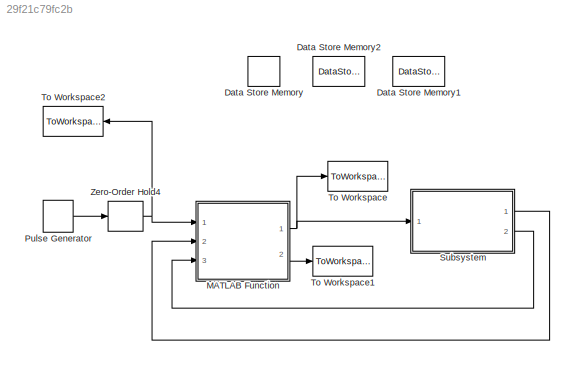
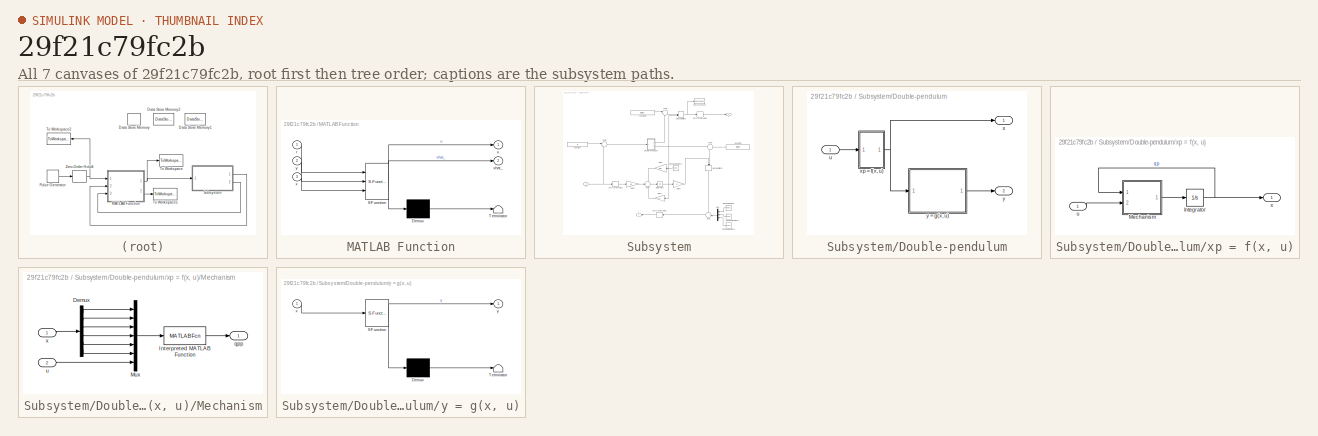
[diagram: thumbnail index - all 7 canvases of the model, root first then tree order]
MODEL slx_29f21c79fc2b
KIND model
CONFIG AbsTol = auto
CONFIG FixedStep = auto
CONFIG MaxStep = auto
CONFIG MinStep = auto
CONFIG RelTol = 1e-3
CONFIG SampleTimeConstraint = Unconstrained
CONFIG Solver = ode45
CONFIG SolverMode = Auto
CONFIG SolverName = ode45
CONFIG StartTime = 0.0
CONFIG StopTime = params.tf
BLOCK [DataStoreMemory] Data Store Memory
  DataStoreName = v
  OutDataTypeStr = double
  SignalType = real
BLOCK [DataStoreMemory] Data Store Memory1
  DataStoreName = u_1
  OutDataTypeStr = double
  ReadBeforeWriteMsg = warning
  SignalType = real
  WriteAfterReadMsg = warning
  WriteAfterWriteMsg = warning
BLOCK [DataStoreMemory] Data Store Memory2
  DataStoreName = xhat
  InitialValue = params.xhat0
  OutDataTypeStr = double
  ReadBeforeWriteMsg = warning
  SignalType = real
  WriteAfterReadMsg = warning
  WriteAfterWriteMsg = warning
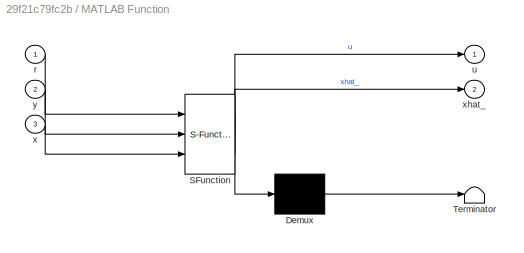
BLOCK [SubSystem] MATLAB Function
  ErrorFcn = Stateflow.Translate.translate
  PermitHierarchicalResolution = ExplicitOnly
  Ports = [3, 2]
  RequestExecContextInheritance = off
  SFBlockType = MATLAB Function
  TreatAsAtomicUnit = on
BLOCK [Demux] MATLAB Function/ Demux 
  Outputs = 1
  Ports = [1, 1]
BLOCK [S-Function] MATLAB Function/ SFunction 
  EnableBusSupport = on
  FunctionName = sf_sfun
  Parameters = C,Gamma,Ki,Kp,L,Phi
  PortCounts = [3 3]
  Ports = [3, 3]
  Tag = Stateflow S-Function sim_double2015 2
BLOCK [Terminator] MATLAB Function/ Terminator 
BLOCK [Inport] MATLAB Function/r
  IconDisplay = Port number
BLOCK [Outport] MATLAB Function/u
  IconDisplay = Port number
BLOCK [Inport] MATLAB Function/x
  IconDisplay = Port number
  Port = 3
BLOCK [Outport] MATLAB Function/xhat_
  IconDisplay = Port number
  Port = 2
BLOCK [Inport] MATLAB Function/y
  IconDisplay = Port number
  Port = 2
BLOCK [DiscretePulseGenerator] Pulse Generator
  Amplitude = params.step_amplitude
  Period = 10
  Ports = [0, 1]
  PulseType = Time based
  PulseWidth = 50
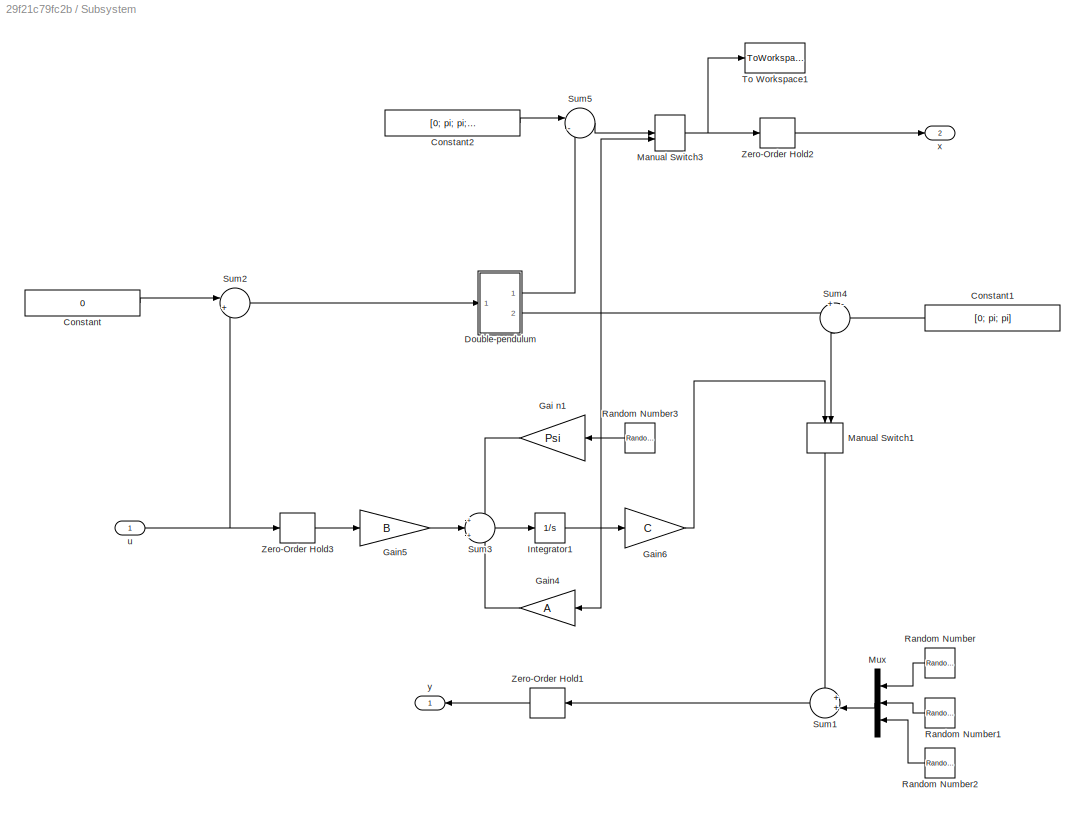
BLOCK [SubSystem] Subsystem
  Ports = [1, 2]
  RequestExecContextInheritance = off
BLOCK [Constant] Subsystem/Constant
  Value = 0
BLOCK [Constant] Subsystem/Constant1
  Value = [0; pi; pi]
BLOCK [Constant] Subsystem/Constant2
  Value = [0; pi; pi; 0; 0; 0]
BLOCK [SubSystem] Subsystem/Double-pendulum
  Ports = [1, 2]
  RequestExecContextInheritance = off
BLOCK [Inport] Subsystem/Double-pendulum/u
  IconDisplay = Port number
BLOCK [Outport] Subsystem/Double-pendulum/x
  IconDisplay = Port number
BLOCK [SubSystem] Subsystem/Double-pendulum/xp = f(x, u)
  Ports = [1, 1]
  RequestExecContextInheritance = off
BLOCK [Integrator] Subsystem/Double-pendulum/xp = f(x, u)/Integrator
  InitialCondition = params.x0
  Ports = [1, 1]
BLOCK [SubSystem] Subsystem/Double-pendulum/xp = f(x, u)/Mechanism
  Ports = [2, 1]
  RequestExecContextInheritance = off
BLOCK [Demux] Subsystem/Double-pendulum/xp = f(x, u)/Mechanism/Demux
  DisplayOption = bar
  Outputs = 6
  Ports = [1, 6]
BLOCK [MATLABFcn] Subsystem/Double-pendulum/xp = f(x, u)/Mechanism/Interpreted MATLAB Function
  MATLABFcn = pendulumfun(u(1), u(2), u(3), u(4), u(5), u(6), u(7))
  OutputDimensions = 6
  Ports = [1, 1]
BLOCK [Mux] Subsystem/Double-pendulum/xp = f(x, u)/Mechanism/Mux
  DisplayOption = bar
  Inputs = 7
  Ports = [7, 1]
BLOCK [Outport] Subsystem/Double-pendulum/xp = f(x, u)/Mechanism/qpp
  IconDisplay = Port number
BLOCK [Inport] Subsystem/Double-pendulum/xp = f(x, u)/Mechanism/u
  IconDisplay = Port number
  Port = 2
BLOCK [Inport] Subsystem/Double-pendulum/xp = f(x, u)/Mechanism/x
  IconDisplay = Port number
BLOCK [Inport] Subsystem/Double-pendulum/xp = f(x, u)/u
  IconDisplay = Port number
BLOCK [Outport] Subsystem/Double-pendulum/xp = f(x, u)/x
  IconDisplay = Port number
BLOCK [Outport] Subsystem/Double-pendulum/y
  IconDisplay = Port number
  Port = 2
BLOCK [SubSystem] Subsystem/Double-pendulum/y = g(x, u)
  ErrorFcn = Stateflow.Translate.translate
  PermitHierarchicalResolution = ExplicitOnly
  Ports = [1, 1]
  RequestExecContextInheritance = off
  SFBlockType = MATLAB Function
  TreatAsAtomicUnit = on
BLOCK [Demux] Subsystem/Double-pendulum/y = g(x, u)/ Demux 
  Outputs = 1
  Ports = [1, 1]
BLOCK [S-Function] Subsystem/Double-pendulum/y = g(x, u)/ SFunction 
  EnableBusSupport = on
  FunctionName = sf_sfun
  PortCounts = [1 2]
  Ports = [1, 2]
  Tag = Stateflow S-Function sim_double2015 13
BLOCK [Terminator] Subsystem/Double-pendulum/y = g(x, u)/ Terminator 
BLOCK [Inport] Subsystem/Double-pendulum/y = g(x, u)/x
  IconDisplay = Port number
BLOCK [Outport] Subsystem/Double-pendulum/y = g(x, u)/y
  IconDisplay = Port number
BLOCK [Gain] Subsystem/Gai n1
  Gain = Psi
  Multiplication = Matrix(K*u) (u vector)
  OutDataTypeStr = Inherit: Inherit via internal rule
  ParamDataTypeStr = Inherit: Inherit via internal rule
  SaturateOnIntegerOverflow = off
BLOCK [Gain] Subsystem/Gain4
  Gain = A
  Multiplication = Matrix(K*u) (u vector)
  OutDataTypeStr = Inherit: Inherit via internal rule
  ParamDataTypeStr = Inherit: Inherit via internal rule
  SaturateOnIntegerOverflow = off
BLOCK [Gain] Subsystem/Gain5
  Gain = B
  Multiplication = Matrix(K*u) (u vector)
  OutDataTypeStr = Inherit: Inherit via internal rule
  ParamDataTypeStr = Inherit: Inherit via internal rule
  SaturateOnIntegerOverflow = off
BLOCK [Gain] Subsystem/Gain6
  Gain = C
  Multiplication = Matrix(K*u) (u vector)
  OutDataTypeStr = Inherit: Inherit via internal rule
  ParamDataTypeStr = Inherit: Inherit via internal rule
  SaturateOnIntegerOverflow = off
BLOCK [Integrator] Subsystem/Integrator1
  InitialCondition = params.x0 - [params.q0,params.qp0 ]
  Ports = [1, 1]
BLOCK [ManualSwitch] Subsystem/Manual Switch1
  CurrentSetting = 0
BLOCK [ManualSwitch] Subsystem/Manual Switch3
BLOCK [Mux] Subsystem/Mux
  DisplayOption = bar
  Inputs = 3
  Ports = [3, 1]
BLOCK [RandomNumber] Subsystem/Random Number
  SampleTime = Ts
  Variance = params.Rv
BLOCK [RandomNumber] Subsystem/Random Number1
  SampleTime = Ts
  Variance = params.Rv
BLOCK [RandomNumber] Subsystem/Random Number2
  SampleTime = Ts
  Variance = params.Rv
BLOCK [RandomNumber] Subsystem/Random Number3
  SampleTime = Ts
  Variance = params.Rw
BLOCK [Sum] Subsystem/Sum1
  IconShape = round
  InputSameDT = off
  Inputs = ++|
  OutDataTypeStr = Inherit: Inherit via internal rule
  Ports = [2, 1]
  SaturateOnIntegerOverflow = off
BLOCK [Sum] Subsystem/Sum2
  IconShape = round
  InputSameDT = off
  Inputs = |++
  OutDataTypeStr = Inherit: Inherit via internal rule
  Ports = [2, 1]
  SaturateOnIntegerOverflow = off
BLOCK [Sum] Subsystem/Sum3
  IconShape = round
  InputSameDT = off
  Inputs = +|+|+
  OutDataTypeStr = Inherit: Inherit via internal rule
  Ports = [3, 1]
  SaturateOnIntegerOverflow = off
BLOCK [Sum] Subsystem/Sum4
  IconShape = round
  InputSameDT = off
  Inputs = +|-
  OutDataTypeStr = Inherit: Inherit via internal rule
  Ports = [2, 1]
  SaturateOnIntegerOverflow = off
BLOCK [Sum] Subsystem/Sum5
  IconShape = round
  InputSameDT = off
  Inputs = |-+
  OutDataTypeStr = Inherit: Inherit via internal rule
  Ports = [2, 1]
  SaturateOnIntegerOverflow = off
BLOCK [ToWorkspace] Subsystem/To Workspace1
  FixptAsFi = on
  MaxDataPoints = inf
  Ports = [1]
  SampleTime = -1
  Save2DSignal = 3-D array (concatenate along third dimension)
  SaveFormat = Structure With Time
  VariableName = x
BLOCK [ZeroOrderHold] Subsystem/Zero-Order Hold1
  SampleTime = Ts
BLOCK [ZeroOrderHold] Subsystem/Zero-Order Hold2
  SampleTime = Ts
BLOCK [ZeroOrderHold] Subsystem/Zero-Order Hold3
  SampleTime = Ts
BLOCK [Inport] Subsystem/u
  IconDisplay = Port number
BLOCK [Outport] Subsystem/x
  IconDisplay = Port number
  Port = 2
BLOCK [Outport] Subsystem/y
  IconDisplay = Port number
BLOCK [ToWorkspace] To Workspace
  FixptAsFi = on
  MaxDataPoints = inf
  Ports = [1]
  SampleTime = -1
  Save2DSignal = 3-D array (concatenate along third dimension)
  SaveFormat = Structure With Time
  VariableName = u
BLOCK [ToWorkspace] To Workspace1
  FixptAsFi = on
  MaxDataPoints = inf
  Ports = [1]
  SampleTime = Ts
  Save2DSignal = 3-D array (concatenate along third dimension)
  SaveFormat = Structure With Time
  VariableName = xhat
BLOCK [ToWorkspace] To Workspace2
  FixptAsFi = on
  MaxDataPoints = inf
  Ports = [1]
  SampleTime = Ts
  Save2DSignal = 3-D array (concatenate along third dimension)
  SaveFormat = Structure With Time
  VariableName = w
BLOCK [ZeroOrderHold] Zero-Order Hold4
  SampleTime = Ts
NET MATLAB Function:1 -> Subsystem:1, To Workspace:1
LINE MATLAB Function:2 -> To Workspace1:1
LINE Pulse Generator:1 -> Zero-Order Hold4:1
LINE Subsystem/Constant1:1 -> Subsystem/Sum4:2
LINE Subsystem/Constant2:1 -> Subsystem/Sum5:1
LINE Subsystem/Constant:1 -> Subsystem/Sum2:1
LINE Subsystem/Double-pendulum/u:1 -> Subsystem/Double-pendulum/xp = f(x, u):1
NET Subsystem/Double-pendulum/xp = f(x, u)/Integrator:1 -> Subsystem/Double-pendulum/xp = f(x, u)/Mechanism:1, Subsystem/Double-pendulum/xp = f(x, u)/x:1
LINE Subsystem/Double-pendulum/xp = f(x, u)/Mechanism/Demux:1 -> Subsystem/Double-pendulum/xp = f(x, u)/Mechanism/Mux:1
LINE Subsystem/Double-pendulum/xp = f(x, u)/Mechanism/Demux:2 -> Subsystem/Double-pendulum/xp = f(x, u)/Mechanism/Mux:2
LINE Subsystem/Double-pendulum/xp = f(x, u)/Mechanism/Demux:3 -> Subsystem/Double-pendulum/xp = f(x, u)/Mechanism/Mux:3
LINE Subsystem/Double-pendulum/xp = f(x, u)/Mechanism/Demux:4 -> Subsystem/Double-pendulum/xp = f(x, u)/Mechanism/Mux:4
LINE Subsystem/Double-pendulum/xp = f(x, u)/Mechanism/Demux:5 -> Subsystem/Double-pendulum/xp = f(x, u)/Mechanism/Mux:5
LINE Subsystem/Double-pendulum/xp = f(x, u)/Mechanism/Demux:6 -> Subsystem/Double-pendulum/xp = f(x, u)/Mechanism/Mux:6
LINE Subsystem/Double-pendulum/xp = f(x, u)/Mechanism/Interpreted MATLAB Function:1 -> Subsystem/Double-pendulum/xp = f(x, u)/Mechanism/qpp:1
LINE Subsystem/Double-pendulum/xp = f(x, u)/Mechanism/Mux:1 -> Subsystem/Double-pendulum/xp = f(x, u)/Mechanism/Interpreted MATLAB Function:1
LINE Subsystem/Double-pendulum/xp = f(x, u)/Mechanism/u:1 -> Subsystem/Double-pendulum/xp = f(x, u)/Mechanism/Mux:7
LINE Subsystem/Double-pendulum/xp = f(x, u)/Mechanism/x:1 -> Subsystem/Double-pendulum/xp = f(x, u)/Mechanism/Demux:1
LINE Subsystem/Double-pendulum/xp = f(x, u)/Mechanism:1 -> Subsystem/Double-pendulum/xp = f(x, u)/Integrator:1
LINE Subsystem/Double-pendulum/xp = f(x, u)/u:1 -> Subsystem/Double-pendulum/xp = f(x, u)/Mechanism:2
NET Subsystem/Double-pendulum/xp = f(x, u):1 -> Subsystem/Double-pendulum/x:1, Subsystem/Double-pendulum/y = g(x, u):1
LINE Subsystem/Double-pendulum/y = g(x, u):1 -> Subsystem/Double-pendulum/y:1
LINE Subsystem/Double-pendulum:1 -> Subsystem/Sum5:2
LINE Subsystem/Double-pendulum:2 -> Subsystem/Sum4:1
LINE Subsystem/Gai n1:1 -> Subsystem/Sum3:1
LINE Subsystem/Gain4:1 -> Subsystem/Sum3:3
LINE Subsystem/Gain5:1 -> Subsystem/Sum3:2
LINE Subsystem/Gain6:1 -> Subsystem/Manual Switch1:1
NET Subsystem/Integrator1:1 -> Subsystem/Gain4:1, Subsystem/Gain6:1, Subsystem/Manual Switch3:2
LINE Subsystem/Manual Switch1:1 -> Subsystem/Sum1:1
NET Subsystem/Manual Switch3:1 -> Subsystem/To Workspace1:1, Subsystem/Zero-Order Hold2:1
LINE Subsystem/Mux:1 -> Subsystem/Sum1:2
LINE Subsystem/Random Number1:1 -> Subsystem/Mux:2
LINE Subsystem/Random Number2:1 -> Subsystem/Mux:3
LINE Subsystem/Random Number3:1 -> Subsystem/Gai n1:1
LINE Subsystem/Random Number:1 -> Subsystem/Mux:1
LINE Subsystem/Sum1:1 -> Subsystem/Zero-Order Hold1:1
LINE Subsystem/Sum2:1 -> Subsystem/Double-pendulum:1
LINE Subsystem/Sum3:1 -> Subsystem/Integrator1:1
LINE Subsystem/Sum4:1 -> Subsystem/Manual Switch1:2
LINE Subsystem/Sum5:1 -> Subsystem/Manual Switch3:1
LINE Subsystem/Zero-Order Hold1:1 -> Subsystem/y:1
LINE Subsystem/Zero-Order Hold2:1 -> Subsystem/x:1
LINE Subsystem/Zero-Order Hold3:1 -> Subsystem/Gain5:1
NET Subsystem/u:1 -> Subsystem/Sum2:2, Subsystem/Zero-Order Hold3:1
LINE Subsystem:1 -> MATLAB Function:2
LINE Subsystem:2 -> MATLAB Function:3
NET Zero-Order Hold4:1 -> MATLAB Function:1, To Workspace2:1
note: NET lines group one-source signal fan-out (src -> all destinations, sorted); 1:1 wires keep LINE
CHART MATLAB Function states=1 transitions=1
  STATE_LABEL 'eML_blk_kernel()'
  STATE_LABEL 'SCRIPT:\nfunction [u, xhat_] = controle(r, y, x, Phi, C, L, Gamma, Kp, Ki)\n    global v xhat;\n    \n    xhat_ = xhat;\n    \n%     u = -Kp*x + Ki*v;\n    u = -Kp*xhat + Ki*v;\n\n    v = v + r - y(1);\n    \n    xhat = Phi*xhat + Gamma*u + L*(y - C*xhat);\nend\n'
CHART Subsystem/Double-pendulum/y = g(x, u) states=1 transitions=1
  STATE_LABEL 'eML_blk_kernel()'
  STATE_LABEL 'SCRIPT:\nfunction y = system_output(x)\n    y = [x(1); x(2); x(3)];\nend'
